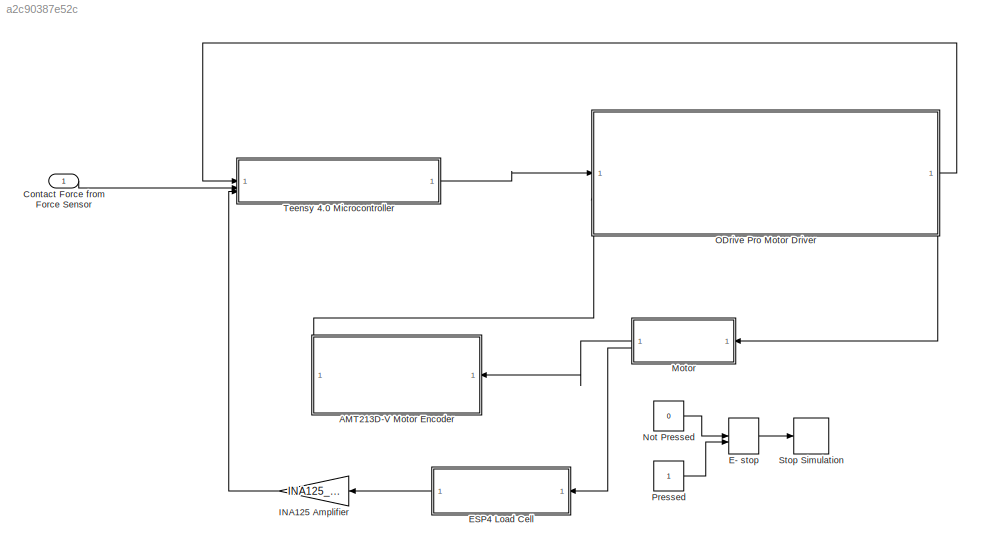
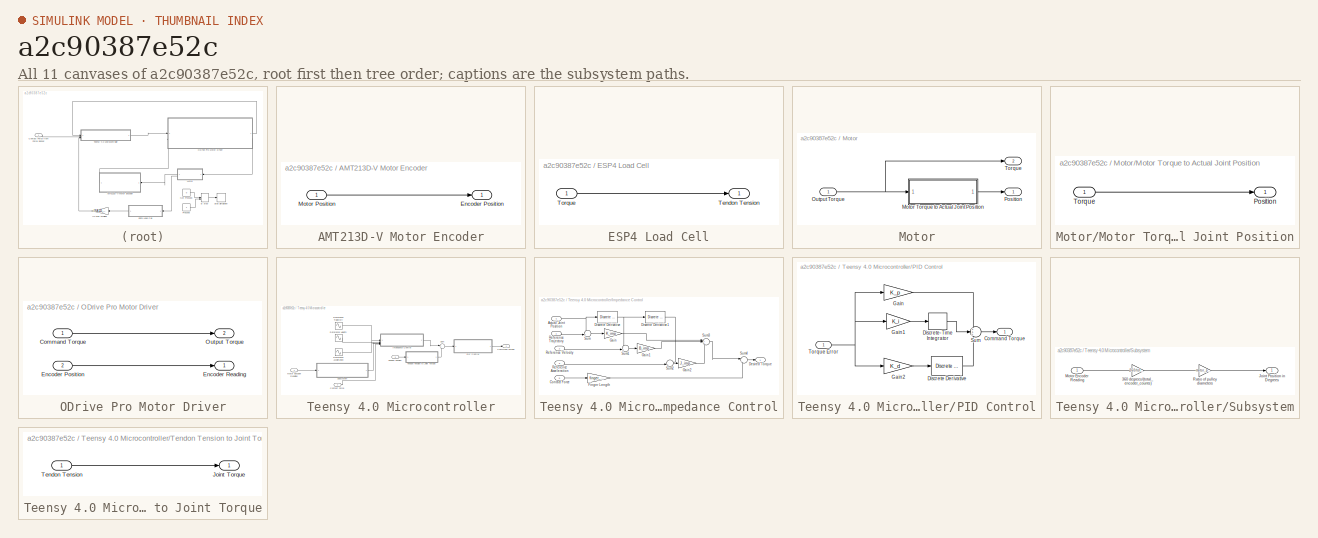
[diagram: thumbnail index - all 11 canvases of the model, root first then tree order]
MODEL slx_a2c90387e52c
KIND model
CONFIG AbsTol = auto
CONFIG EnableMultiTasking = off
CONFIG FixedStep = auto
CONFIG MaxStep = auto
CONFIG MinStep = auto
CONFIG PreLoadFcn = load 'Control Block Diagram'\contact_force.mat
CONFIG RelTol = 1e-3
CONFIG SampleTimeConstraint = Unconstrained
CONFIG SolverName = VariableStepAuto
CONFIG StartTime = 0.0
CONFIG StopTime = 10.0
WORKSPACE source: mxarray member
WORKSPACE B_imp = 1
WORKSPACE INA125_gain = 604
WORKSPACE J_imp = 1
WORKSPACE K_d = 1
WORKSPACE K_f = 1
WORKSPACE K_i = 1
WORKSPACE K_imp = 1
WORKSPACE K_p = 1
WORKSPACE finger_length = 0.105
WORKSPACE full_ROM = 90
WORKSPACE joint_pulley_diam = 0.1
WORKSPACE motor_pulley_diam = 0
WORKSPACE sine_freq_Hz = 2
WORKSPACE total_encoder_counts = 4096
BLOCK [ManualSwitch]  E- stop
BLOCK [SubSystem] AMT213D-V Motor Encoder
  PortSchema = {"entries":[{"content":{"sides":[{"content":{"connectorIds":["In1"]},"type":"ConnectorPlacement.EquallySpacedRectSide","uuid":"88afd67f-3209-48d2-80be-27a9c6027e98"},{"content":{"side":"RIGHT"},"type":"ConnectorPlacement.EquallySpacedRectSide","uuid":"6bd83a64-80e2-4e6b-a2e1-60e2a1b1e7d1"},{"content":{"connectorIds":["Out1"],"side":"TOP"},"type":"ConnectorPlacement.EquallySpacedRectSide","uuid":"c...<+222ch>
BLOCK [Outport] AMT213D-V Motor Encoder/Encoder Position
BLOCK [Inport] AMT213D-V Motor Encoder/Motor Position
BLOCK [Inport] Contact Force from Force Sensor
BLOCK [SubSystem] ESP4 Load Cell
BLOCK [Outport] ESP4 Load Cell/Tendon Tension
BLOCK [Inport] ESP4 Load Cell/Torque
BLOCK [Gain] INA125 Amplifier
  Gain = INA125_gain
BLOCK [SubSystem] Motor
BLOCK [SubSystem] Motor/Motor Torque to Actual Joint Position
BLOCK [Outport] Motor/Motor Torque to Actual Joint Position/Position
BLOCK [Inport] Motor/Motor Torque to Actual Joint Position/Torque 
BLOCK [Inport] Motor/Output Torque 
BLOCK [Outport] Motor/Position 
BLOCK [Outport] Motor/Torque
  Port = 2
BLOCK [Constant] Not Pressed
  Value = 0
BLOCK [SubSystem] ODrive Pro Motor Driver
  PortSchema = {"entries":[{"content":{"sides":[{"content":{"connectorIds":["In1"]},"type":"ConnectorPlacement.EquallySpacedRectSide","uuid":"c97f3b25-cb08-4b77-804d-5691f1a52caa"},{"content":{"connectorIds":["Out1"],"side":"RIGHT"},"type":"ConnectorPlacement.EquallySpacedRectSide","uuid":"fc8ddf87-a458-4f73-a642-c7dd3d8cebff"},{"content":{"side":"TOP"},"type":"ConnectorPlacement.EquallySpacedRectSide","uuid":"b...<+378ch>
BLOCK [Inport] ODrive Pro Motor Driver/Command Torque
BLOCK [Inport] ODrive Pro Motor Driver/Encoder Position
  Port = 2
BLOCK [Outport] ODrive Pro Motor Driver/Encoder Reading
BLOCK [Outport] ODrive Pro Motor Driver/Output Torque 
  Port = 2
BLOCK [Constant] Pressed
BLOCK [Stop] Stop Simulation
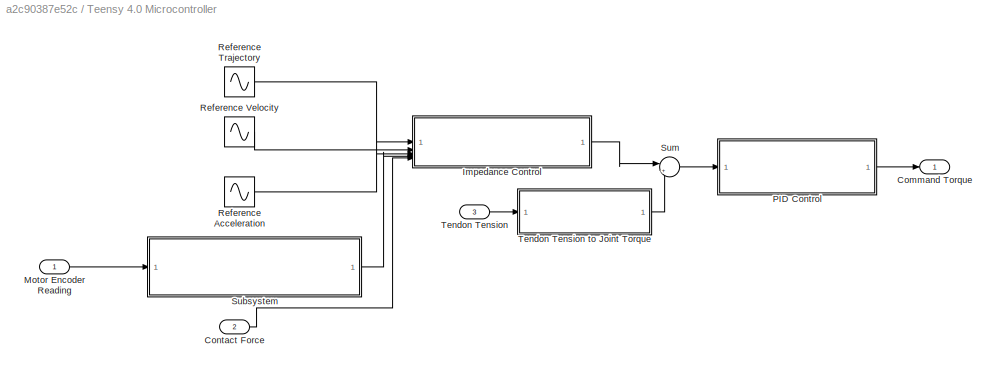
BLOCK [SubSystem] Teensy 4.0 Microcontroller
BLOCK [Outport] Teensy 4.0 Microcontroller/Command Torque
BLOCK [Inport] Teensy 4.0 Microcontroller/Contact Force
  Port = 2
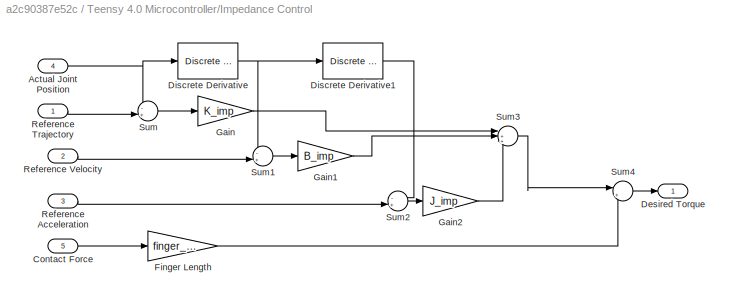
BLOCK [SubSystem] Teensy 4.0 Microcontroller/Impedance Control
BLOCK [Inport] Teensy 4.0 Microcontroller/Impedance Control/Actual Joint Position
  Port = 4
BLOCK [Inport] Teensy 4.0 Microcontroller/Impedance Control/Contact Force
  Port = 5
BLOCK [Outport] Teensy 4.0 Microcontroller/Impedance Control/Desired Torque
BLOCK [Reference] Teensy 4.0 Microcontroller/Impedance Control/Discrete Derivative  REF=simulink/Discrete/Discrete Derivative
  SourceBlock = simulink/Discrete/Discrete Derivative
  SourceType = Discrete Derivative
BLOCK [Reference] Teensy 4.0 Microcontroller/Impedance Control/Discrete Derivative1  REF=simulink/Discrete/Discrete Derivative
  SourceBlock = simulink/Discrete/Discrete Derivative
  SourceType = Discrete Derivative
BLOCK [Gain] Teensy 4.0 Microcontroller/Impedance Control/Finger Length
  Gain = finger_length
BLOCK [Gain] Teensy 4.0 Microcontroller/Impedance Control/Gain
  Gain = K_imp
BLOCK [Gain] Teensy 4.0 Microcontroller/Impedance Control/Gain1
  Gain = B_imp
BLOCK [Gain] Teensy 4.0 Microcontroller/Impedance Control/Gain2
  Gain = J_imp
BLOCK [Inport] Teensy 4.0 Microcontroller/Impedance Control/Reference Acceleration
  Port = 3
BLOCK [Inport] Teensy 4.0 Microcontroller/Impedance Control/Reference Trajectory
BLOCK [Inport] Teensy 4.0 Microcontroller/Impedance Control/Reference Velocity
  Port = 2
BLOCK [Sum] Teensy 4.0 Microcontroller/Impedance Control/Sum
  Inputs = -+|
BLOCK [Sum] Teensy 4.0 Microcontroller/Impedance Control/Sum1
  Inputs = -+|
BLOCK [Sum] Teensy 4.0 Microcontroller/Impedance Control/Sum2
  Inputs = -+|
BLOCK [Sum] Teensy 4.0 Microcontroller/Impedance Control/Sum3
  Inputs = |+++
BLOCK [Sum] Teensy 4.0 Microcontroller/Impedance Control/Sum4
  Inputs = |++
BLOCK [Inport] Teensy 4.0 Microcontroller/Motor Encoder Reading
BLOCK [SubSystem] Teensy 4.0 Microcontroller/PID Control
BLOCK [Outport] Teensy 4.0 Microcontroller/PID Control/Command Torque
BLOCK [Reference] Teensy 4.0 Microcontroller/PID Control/Discrete Derivative  REF=simulink/Discrete/Discrete Derivative
  SourceBlock = simulink/Discrete/Discrete Derivative
  SourceType = Discrete Derivative
BLOCK [DiscreteIntegrator] Teensy 4.0 Microcontroller/PID Control/Discrete-Time Integrator
  ICPrevOutput = DiscIntNeverNeededParam
  ICPrevScaledInput = DiscIntNeverNeededParam
  InitialConditionSetting = Auto
  SampleTime = -1
BLOCK [Gain] Teensy 4.0 Microcontroller/PID Control/Gain
  Gain = K_p
BLOCK [Gain] Teensy 4.0 Microcontroller/PID Control/Gain1
  Gain = K_i
BLOCK [Gain] Teensy 4.0 Microcontroller/PID Control/Gain2
  Gain = K_d
BLOCK [Sum] Teensy 4.0 Microcontroller/PID Control/Sum
  Inputs = +++
BLOCK [Inport] Teensy 4.0 Microcontroller/PID Control/Torque Error
BLOCK [Sin] Teensy 4.0 Microcontroller/Reference Acceleration
  Amplitude = -0.75*full_ROM*(sine_freq_Hz*2*pi)^2
  Frequency = sine_freq_Hz*2*pi
  SampleTime = 0
BLOCK [Sin] Teensy 4.0 Microcontroller/Reference Trajectory
  Amplitude = 0.75*full_ROM
  Frequency = sine_freq_Hz*2*pi
  SampleTime = 0
BLOCK [Sin] Teensy 4.0 Microcontroller/Reference Velocity
  Amplitude = 0.75*full_ROM*sine_freq_Hz*2*pi
  Frequency = sine_freq_Hz*2*pi
  Phase = pi/2
  SampleTime = 0
BLOCK [SubSystem] Teensy 4.0 Microcontroller/Subsystem
BLOCK [Gain] Teensy 4.0 Microcontroller/Subsystem/360 degrees//(total_encoder_counts)
  Gain = 360/total_encoder_counts
BLOCK [Outport] Teensy 4.0 Microcontroller/Subsystem/Joint Position in Degrees
BLOCK [Inport] Teensy 4.0 Microcontroller/Subsystem/Motor Encoder Reading
BLOCK [Gain] Teensy 4.0 Microcontroller/Subsystem/Ratio of pulley diameters
  Gain = motor_pulley_diam/joint_pulley_diam
BLOCK [Sum] Teensy 4.0 Microcontroller/Sum
  Inputs = |+-
BLOCK [Inport] Teensy 4.0 Microcontroller/Tendon Tension
  Port = 3
BLOCK [SubSystem] Teensy 4.0 Microcontroller/Tendon Tension to Joint Torque
BLOCK [Outport] Teensy 4.0 Microcontroller/Tendon Tension to Joint Torque/Joint Torque
BLOCK [Inport] Teensy 4.0 Microcontroller/Tendon Tension to Joint Torque/Tendon Tension
LINE  E- stop:1 -> Stop Simulation:1
LINE AMT213D-V Motor Encoder/Motor Position:1 -> AMT213D-V Motor Encoder/Encoder Position:1
LINE AMT213D-V Motor Encoder:1 -> ODrive Pro Motor Driver:2
LINE Contact Force from Force Sensor:1 -> Teensy 4.0 Microcontroller:2
LINE ESP4 Load Cell/Torque:1 -> ESP4 Load Cell/Tendon Tension:1
LINE ESP4 Load Cell:1 -> INA125 Amplifier:1
LINE INA125 Amplifier:1 -> Teensy 4.0 Microcontroller:3
LINE Motor/Motor Torque to Actual Joint Position/Torque :1 -> Motor/Motor Torque to Actual Joint Position/Position:1
LINE Motor/Motor Torque to Actual Joint Position:1 -> Motor/Position :1
NET Motor/Output Torque :1 -> Motor/Motor Torque to Actual Joint Position:1, Motor/Torque:1
LINE Motor:1 -> AMT213D-V Motor Encoder:1
LINE Motor:2 -> ESP4 Load Cell:1
LINE Not Pressed:1 ->  E- stop:1
LINE ODrive Pro Motor Driver/Command Torque:1 -> ODrive Pro Motor Driver/Output Torque :1
LINE ODrive Pro Motor Driver/Encoder Position:1 -> ODrive Pro Motor Driver/Encoder Reading:1
LINE ODrive Pro Motor Driver:1 -> Teensy 4.0 Microcontroller:1
LINE ODrive Pro Motor Driver:2 -> Motor:1
LINE Pressed:1 ->  E- stop:2
LINE Teensy 4.0 Microcontroller/Contact Force:1 -> Teensy 4.0 Microcontroller/Impedance Control:5
NET Teensy 4.0 Microcontroller/Impedance Control/Actual Joint Position:1 -> Teensy 4.0 Microcontroller/Impedance Control/Discrete Derivative:1, Teensy 4.0 Microcontroller/Impedance Control/Sum:1
LINE Teensy 4.0 Microcontroller/Impedance Control/Contact Force:1 -> Teensy 4.0 Microcontroller/Impedance Control/Finger Length:1
LINE Teensy 4.0 Microcontroller/Impedance Control/Discrete Derivative1:1 -> Teensy 4.0 Microcontroller/Impedance Control/Sum2:1
NET Teensy 4.0 Microcontroller/Impedance Control/Discrete Derivative:1 -> Teensy 4.0 Microcontroller/Impedance Control/Discrete Derivative1:1, Teensy 4.0 Microcontroller/Impedance Control/Sum1:1
LINE Teensy 4.0 Microcontroller/Impedance Control/Finger Length:1 -> Teensy 4.0 Microcontroller/Impedance Control/Sum4:2
LINE Teensy 4.0 Microcontroller/Impedance Control/Gain1:1 -> Teensy 4.0 Microcontroller/Impedance Control/Sum3:2
LINE Teensy 4.0 Microcontroller/Impedance Control/Gain2:1 -> Teensy 4.0 Microcontroller/Impedance Control/Sum3:3
LINE Teensy 4.0 Microcontroller/Impedance Control/Gain:1 -> Teensy 4.0 Microcontroller/Impedance Control/Sum3:1
LINE Teensy 4.0 Microcontroller/Impedance Control/Reference Acceleration:1 -> Teensy 4.0 Microcontroller/Impedance Control/Sum2:2
LINE Teensy 4.0 Microcontroller/Impedance Control/Reference Trajectory:1 -> Teensy 4.0 Microcontroller/Impedance Control/Sum:2
LINE Teensy 4.0 Microcontroller/Impedance Control/Reference Velocity:1 -> Teensy 4.0 Microcontroller/Impedance Control/Sum1:2
LINE Teensy 4.0 Microcontroller/Impedance Control/Sum1:1 -> Teensy 4.0 Microcontroller/Impedance Control/Gain1:1
LINE Teensy 4.0 Microcontroller/Impedance Control/Sum2:1 -> Teensy 4.0 Microcontroller/Impedance Control/Gain2:1
LINE Teensy 4.0 Microcontroller/Impedance Control/Sum3:1 -> Teensy 4.0 Microcontroller/Impedance Control/Sum4:1
LINE Teensy 4.0 Microcontroller/Impedance Control/Sum4:1 -> Teensy 4.0 Microcontroller/Impedance Control/Desired Torque:1
LINE Teensy 4.0 Microcontroller/Impedance Control/Sum:1 -> Teensy 4.0 Microcontroller/Impedance Control/Gain:1
LINE Teensy 4.0 Microcontroller/Impedance Control:1 -> Teensy 4.0 Microcontroller/Sum:1
LINE Teensy 4.0 Microcontroller/Motor Encoder Reading:1 -> Teensy 4.0 Microcontroller/Subsystem:1
LINE Teensy 4.0 Microcontroller/PID Control/Discrete Derivative:1 -> Teensy 4.0 Microcontroller/PID Control/Sum:3
LINE Teensy 4.0 Microcontroller/PID Control/Discrete-Time Integrator:1 -> Teensy 4.0 Microcontroller/PID Control/Sum:2
LINE Teensy 4.0 Microcontroller/PID Control/Gain1:1 -> Teensy 4.0 Microcontroller/PID Control/Discrete-Time Integrator:1
LINE Teensy 4.0 Microcontroller/PID Control/Gain2:1 -> Teensy 4.0 Microcontroller/PID Control/Discrete Derivative:1
LINE Teensy 4.0 Microcontroller/PID Control/Gain:1 -> Teensy 4.0 Microcontroller/PID Control/Sum:1
LINE Teensy 4.0 Microcontroller/PID Control/Sum:1 -> Teensy 4.0 Microcontroller/PID Control/Command Torque:1
NET Teensy 4.0 Microcontroller/PID Control/Torque Error:1 -> Teensy 4.0 Microcontroller/PID Control/Gain1:1, Teensy 4.0 Microcontroller/PID Control/Gain2:1, Teensy 4.0 Microcontroller/PID Control/Gain:1
LINE Teensy 4.0 Microcontroller/PID Control:1 -> Teensy 4.0 Microcontroller/Command Torque:1
LINE Teensy 4.0 Microcontroller/Reference Acceleration:1 -> Teensy 4.0 Microcontroller/Impedance Control:3
LINE Teensy 4.0 Microcontroller/Reference Trajectory:1 -> Teensy 4.0 Microcontroller/Impedance Control:1
LINE Teensy 4.0 Microcontroller/Reference Velocity:1 -> Teensy 4.0 Microcontroller/Impedance Control:2
LINE Teensy 4.0 Microcontroller/Subsystem/360 degrees//(total_encoder_counts):1 -> Teensy 4.0 Microcontroller/Subsystem/Ratio of pulley diameters:1
LINE Teensy 4.0 Microcontroller/Subsystem/Motor Encoder Reading:1 -> Teensy 4.0 Microcontroller/Subsystem/360 degrees//(total_encoder_counts):1
LINE Teensy 4.0 Microcontroller/Subsystem/Ratio of pulley diameters:1 -> Teensy 4.0 Microcontroller/Subsystem/Joint Position in Degrees:1
LINE Teensy 4.0 Microcontroller/Subsystem:1 -> Teensy 4.0 Microcontroller/Impedance Control:4
LINE Teensy 4.0 Microcontroller/Sum:1 -> Teensy 4.0 Microcontroller/PID Control:1
LINE Teensy 4.0 Microcontroller/Tendon Tension to Joint Torque/Tendon Tension:1 -> Teensy 4.0 Microcontroller/Tendon Tension to Joint Torque/Joint Torque:1
LINE Teensy 4.0 Microcontroller/Tendon Tension to Joint Torque:1 -> Teensy 4.0 Microcontroller/Sum:2
LINE Teensy 4.0 Microcontroller/Tendon Tension:1 -> Teensy 4.0 Microcontroller/Tendon Tension to Joint Torque:1
LINE Teensy 4.0 Microcontroller:1 -> ODrive Pro Motor Driver:1
note: NET lines group one-source signal fan-out (src -> all destinations, sorted); 1:1 wires keep LINE
